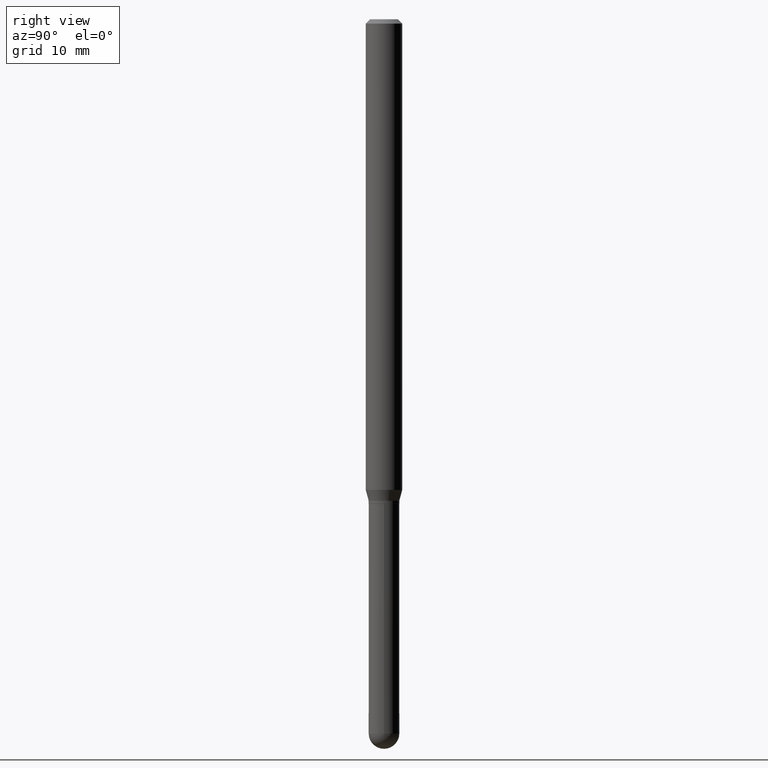
[diagram: clean part render]
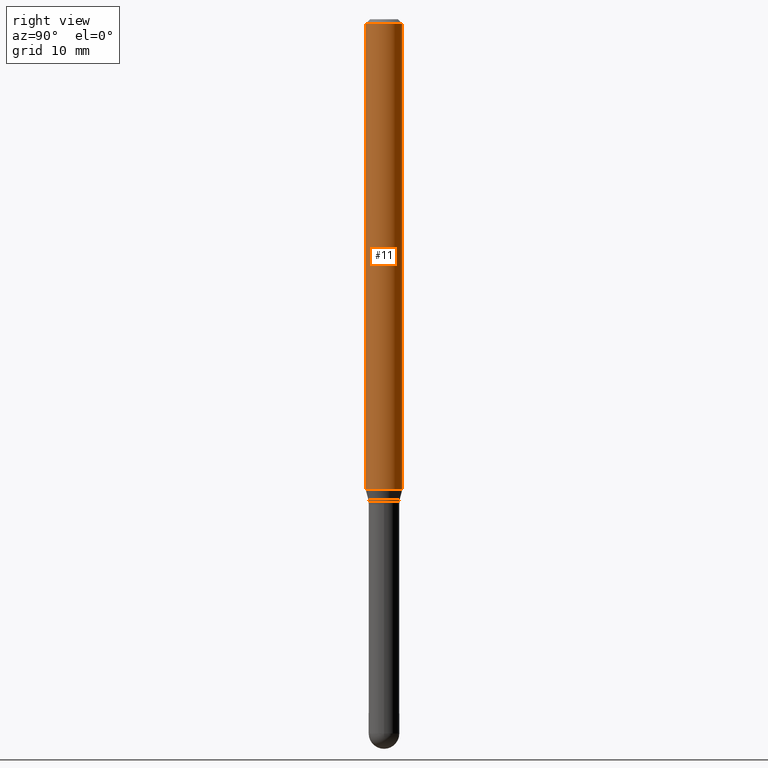
[diagram: same view with one face highlighted and labeled with its STEP entity id]
A machine part, right view. The second image highlights one B-rep face of the part: STEP entity #11.
In plain terms, the highlighted cylindrical surface (edge-blend (fillet) strip) has radius 1.5875 mm, axis along (-0, 0, 1).
Its self-contained STEP definition (entity closure, byte-faithful):
#1 = VERTEX_POINT ( 'NONE', #390 ) ;
#3 = ORIENTED_EDGE ( 'NONE', *, *, #80, .T. ) ;
#11 = ADVANCED_FACE ( 'NONE', ( #325 ), #318, .T. ) ;
#13 = AXIS2_PLACEMENT_3D ( 'NONE', #357, #163, #463 ) ;
#41 = EDGE_CURVE ( 'NONE', #1, #269, #425, .T. ) ;
#43 = DIRECTION ( 'NONE',  ( -6.982962677686265922E-15, -1.000000000000000000, 3.491630569546535729E-15 ) ) ;
#60 = CIRCLE ( 'NONE', #101, 0.06250000000000000000 ) ;
#73 = VERTEX_POINT ( 'NONE', #397 ) ;
#80 = EDGE_CURVE ( 'NONE', #382, #73, #242, .T. ) ;
#101 = AXIS2_PLACEMENT_3D ( 'NONE', #391, #253, #512 ) ;
#110 = EDGE_LOOP ( 'NONE', ( #230, #3, #246, #228 ) ) ;
#125 = VECTOR ( 'NONE', #478, 39.37007874015748143 ) ;
#130 = CARTESIAN_POINT ( 'NONE',  ( -4.364351673553916201E-16, -0.06250000000000000000, 2.182269105966584831E-16 ) ) ;
#133 = CARTESIAN_POINT ( 'NONE',  ( 0.000000000000000000, 0.000000000000000000, 0.000000000000000000 ) ) ;
#162 = DIRECTION ( 'NONE',  ( -2.445364598941922057E-29, 3.491630569546536123E-15, 1.000000000000000000 ) ) ;
#163 = DIRECTION ( 'NONE',  ( -2.445364598941922338E-29, 3.491630569546536123E-15, 1.000000000000000000 ) ) ;
#172 = CARTESIAN_POINT ( 'NONE',  ( 4.440892098500625669E-16, 0.06250000000000000000, -2.182269105966584831E-16 ) ) ;
#228 = ORIENTED_EDGE ( 'NONE', *, *, #41, .F. ) ;
#230 = ORIENTED_EDGE ( 'NONE', *, *, #508, .T. ) ;
#237 = DIRECTION ( 'NONE',  ( -2.445364598941922338E-29, 3.491630569546536123E-15, 1.000000000000000000 ) ) ;
#242 = LINE ( 'NONE', #172, #125 ) ;
#246 = ORIENTED_EDGE ( 'NONE', *, *, #262, .F. ) ;
#253 = DIRECTION ( 'NONE',  ( -2.445364598941922338E-29, 3.491630569546536123E-15, 1.000000000000000000 ) ) ;
#262 = EDGE_CURVE ( 'NONE', #269, #73, #331, .T. ) ;
#269 = VERTEX_POINT ( 'NONE', #394 ) ;
#289 = VECTOR ( 'NONE', #162, 39.37007874015748143 ) ;
#292 = AXIS2_PLACEMENT_3D ( 'NONE', #133, #237, #43 ) ;
#318 = CYLINDRICAL_SURFACE ( 'NONE', #292, 0.06250000000000000000 ) ;
#325 = FACE_OUTER_BOUND ( 'NONE', #110, .T. ) ;
#331 = CIRCLE ( 'NONE', #13, 0.06250000000000000000 ) ;
#357 = CARTESIAN_POINT ( 'NONE',  ( 3.668046898412900305E-31, -5.237445854319827038E-17, -0.01500000000000006710 ) ) ;
#382 = VERTEX_POINT ( 'NONE', #502 ) ;
#390 = CARTESIAN_POINT ( 'NONE',  ( -4.364351673553520291E-16, -0.06250000000000560663, -1.612679491924311925 ) ) ;
#391 = CARTESIAN_POINT ( 'NONE',  ( 3.943589338991358859E-29, -5.630881012883705018E-15, -1.612679491924312369 ) ) ;
#394 = CARTESIAN_POINT ( 'NONE',  ( -4.364351673553912750E-16, -0.06250000000000005551, -0.01499999999999984852 ) ) ;
#397 = CARTESIAN_POINT ( 'NONE',  ( 4.440892098501022564E-16, 0.06249999999999995143, -0.01500000000000028394 ) ) ;
#425 = LINE ( 'NONE', #130, #289 ) ;
#463 = DIRECTION ( 'NONE',  ( -6.982962677686265922E-15, -1.000000000000000000, 3.483106191921935554E-15 ) ) ;
#478 = DIRECTION ( 'NONE',  ( -2.445364598941922057E-29, 3.491630569546536123E-15, 1.000000000000000000 ) ) ;
#502 = CARTESIAN_POINT ( 'NONE',  ( 4.440892098501021578E-16, 0.06249999999999439337, -1.612679491924312591 ) ) ;
#508 = EDGE_CURVE ( 'NONE', #1, #382, #60, .T. ) ;
#512 = DIRECTION ( 'NONE',  ( -6.982962677686265922E-15, -1.000000000000000000, 4.370956789862821150E-15 ) ) ;